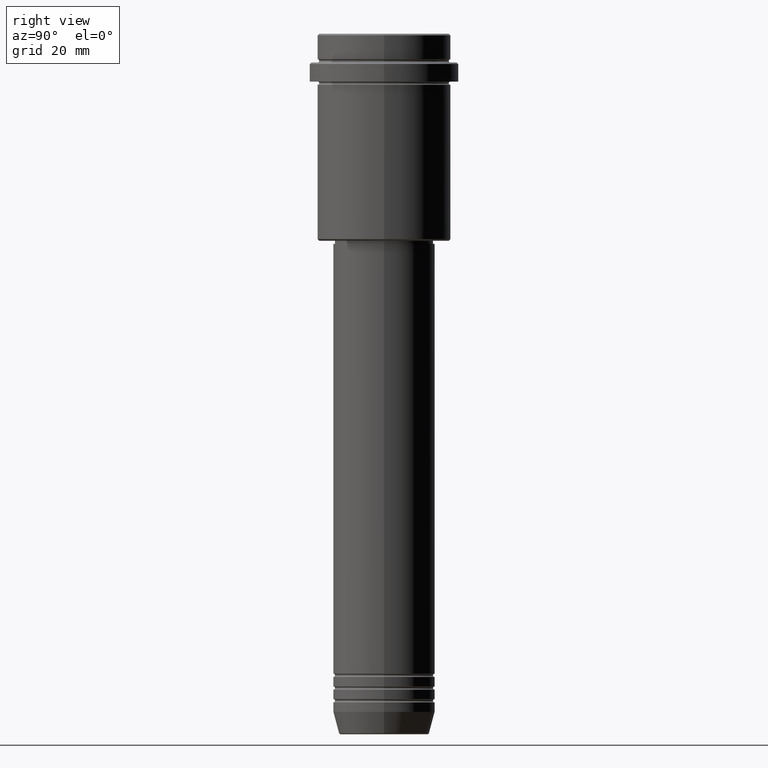
[diagram: clean part render]
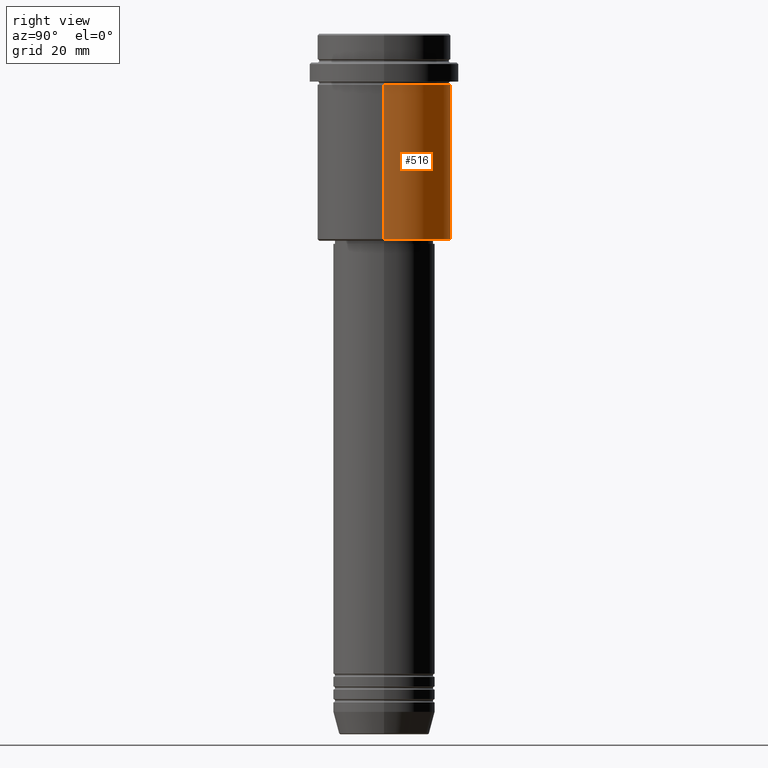
[diagram: same view with one face highlighted and labeled with its STEP entity id]
A machine part, right view. The second image highlights one B-rep face of the part: STEP entity #516.
In plain terms, the highlighted cylindrical surface (partial cylindrical patch) has radius 21 mm, axis along (-0, -0, 1).
Its self-contained STEP definition (entity closure, byte-faithful):
#73 = ORIENTED_EDGE ( 'NONE', *, *, #165, .T. ) ;
#86 = VECTOR ( 'NONE', #1026, 1000.000000000000000 ) ;
#108 = FACE_OUTER_BOUND ( 'NONE', #1046, .T. ) ;
#122 = VERTEX_POINT ( 'NONE', #181 ) ;
#159 = VERTEX_POINT ( 'NONE', #776 ) ;
#165 = EDGE_CURVE ( 'NONE', #1092, #159, #991, .T. ) ;
#181 = CARTESIAN_POINT ( 'NONE',  ( 20.99999999999999645, 0.000000000000000000, -16.00000000000000355 ) ) ;
#215 = EDGE_CURVE ( 'NONE', #1373, #1092, #1408, .T. ) ;
#221 = CARTESIAN_POINT ( 'NONE',  ( -20.99999999999999645, 2.571758278209441267E-15, 0.000000000000000000 ) ) ;
#269 = LINE ( 'NONE', #1368, #86 ) ;
#298 = CYLINDRICAL_SURFACE ( 'NONE', #1072, 20.99999999999999645 ) ;
#354 = CARTESIAN_POINT ( 'NONE',  ( 0.000000000000000000, 0.000000000000000000, -16.00000000000000355 ) ) ;
#373 = AXIS2_PLACEMENT_3D ( 'NONE', #1226, #814, #794 ) ;
#516 = ADVANCED_FACE ( 'NONE', ( #108 ), #298, .T. ) ;
#522 = DIRECTION ( 'NONE',  ( -0.000000000000000000, -0.000000000000000000, 1.000000000000000000 ) ) ;
#543 = DIRECTION ( 'NONE',  ( -0.000000000000000000, -0.000000000000000000, 1.000000000000000000 ) ) ;
#563 = CARTESIAN_POINT ( 'NONE',  ( 20.99999999999999645, 0.000000000000000000, -64.50000000000002842 ) ) ;
#733 = AXIS2_PLACEMENT_3D ( 'NONE', #354, #889, #1000 ) ;
#745 = CARTESIAN_POINT ( 'NONE',  ( 0.000000000000000000, 0.000000000000000000, 0.000000000000000000 ) ) ;
#775 = ORIENTED_EDGE ( 'NONE', *, *, #215, .T. ) ;
#776 = CARTESIAN_POINT ( 'NONE',  ( -20.99999999999999645, 2.571758278209441267E-15, -16.00000000000000355 ) ) ;
#786 = EDGE_CURVE ( 'NONE', #1373, #122, #269, .T. ) ;
#794 = DIRECTION ( 'NONE',  ( -1.000000000000000000, 0.000000000000000000, 0.000000000000000000 ) ) ;
#814 = DIRECTION ( 'NONE',  ( -0.000000000000000000, -0.000000000000000000, 1.000000000000000000 ) ) ;
#889 = DIRECTION ( 'NONE',  ( -0.000000000000000000, -0.000000000000000000, 1.000000000000000000 ) ) ;
#962 = ORIENTED_EDGE ( 'NONE', *, *, #786, .F. ) ;
#991 = LINE ( 'NONE', #221, #1257 ) ;
#1000 = DIRECTION ( 'NONE',  ( 1.000000000000000000, 0.000000000000000000, 0.000000000000000000 ) ) ;
#1026 = DIRECTION ( 'NONE',  ( -0.000000000000000000, -0.000000000000000000, 1.000000000000000000 ) ) ;
#1046 = EDGE_LOOP ( 'NONE', ( #775, #73, #1078, #962 ) ) ;
#1047 = EDGE_CURVE ( 'NONE', #122, #159, #1146, .T. ) ;
#1072 = AXIS2_PLACEMENT_3D ( 'NONE', #745, #543, #1180 ) ;
#1078 = ORIENTED_EDGE ( 'NONE', *, *, #1047, .F. ) ;
#1092 = VERTEX_POINT ( 'NONE', #1228 ) ;
#1146 = CIRCLE ( 'NONE', #733, 20.99999999999999645 ) ;
#1180 = DIRECTION ( 'NONE',  ( 1.000000000000000000, 0.000000000000000000, 0.000000000000000000 ) ) ;
#1226 = CARTESIAN_POINT ( 'NONE',  ( 0.000000000000000000, 0.000000000000000000, -64.50000000000002842 ) ) ;
#1228 = CARTESIAN_POINT ( 'NONE',  ( -20.99999999999999645, 2.571758278209441267E-15, -64.50000000000002842 ) ) ;
#1257 = VECTOR ( 'NONE', #522, 1000.000000000000000 ) ;
#1368 = CARTESIAN_POINT ( 'NONE',  ( 20.99999999999999645, 0.000000000000000000, 0.000000000000000000 ) ) ;
#1373 = VERTEX_POINT ( 'NONE', #563 ) ;
#1408 = CIRCLE ( 'NONE', #373, 20.99999999999999645 ) ;